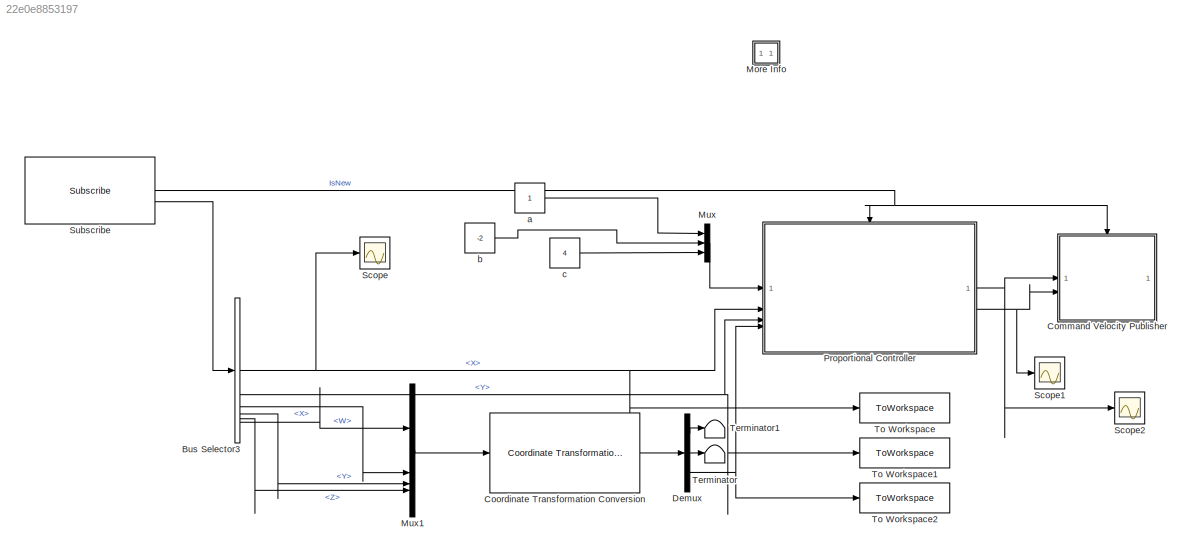
MODEL slx_22e0e8853197
KIND model
CONFIG AbsTol = auto
CONFIG EnableMultiTasking = on
CONFIG FixedStep = 0.02
CONFIG MaxStep = auto
CONFIG MinStep = auto
CONFIG RelTol = 1e-3
CONFIG SampleTimeConstraint = Unconstrained
CONFIG SolverName = FixedStepDiscrete
CONFIG StartTime = 0.0
CONFIG StopTime = Inf
WORKSPACE source: mxarray member
WORKSPACE SL_ROS_VariableLengthArrays_MaxSizes: object (value not decoded)
BLOCK [BusSelector] Bus Selector3
  OutputSignals = Pose.Pose.Position.X,Pose.Pose.Position.Y,Pose.Pose.Orientation.X,Pose.Pose.Orientation.Y,Pose.Pose.Orientation.Z,Pose.Pose.Orientation.W
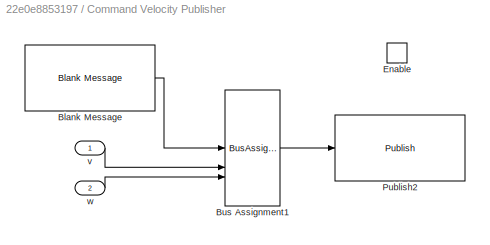
BLOCK [SubSystem] Command Velocity Publisher
BLOCK [Reference] Command Velocity Publisher/Blank Message  REF=robotlib/Blank Message
  SourceBlock = robotlib/Blank Message
  SourceType = ROS Blank Message
BLOCK [BusAssignment] Command Velocity Publisher/Bus Assignment1
  AssignedSignals = Linear.X,Angular.Z
  DialogController = Simulink.DDGSource_BusAssignment
BLOCK [EnablePort] Command Velocity Publisher/Enable
BLOCK [Reference] Command Velocity Publisher/Publish2  REF=robotlib/Publish
  AttributesFormatString = %<messageType>
  SourceBlock = robotlib/Publish
  SourceType = ROS Publish
BLOCK [Inport] Command Velocity Publisher/v
BLOCK [Inport] Command Velocity Publisher/w
  Port = 2
BLOCK [Reference] Coordinate Transformation Conversion  REF=robotcorelib/Coordinate Transformation Conversion
  LibrarySourceBlock = roslib/Utilities/Coordinate Transformation Conversion
  SourceBlock = robotcorelib/Coordinate Transformation Conversion
  SourceType = robotics.slcore.internal.block.CoordinateTransformationConversion
BLOCK [Demux] Demux
  Outputs = 3
BLOCK [SubSystem] More Info
  OpenFcn = showdemo(bdroot(gcb))
BLOCK [Mux] Mux
  DisplayOption = bar
  Inputs = 3
BLOCK [Mux] Mux1
  DisplayOption = bar
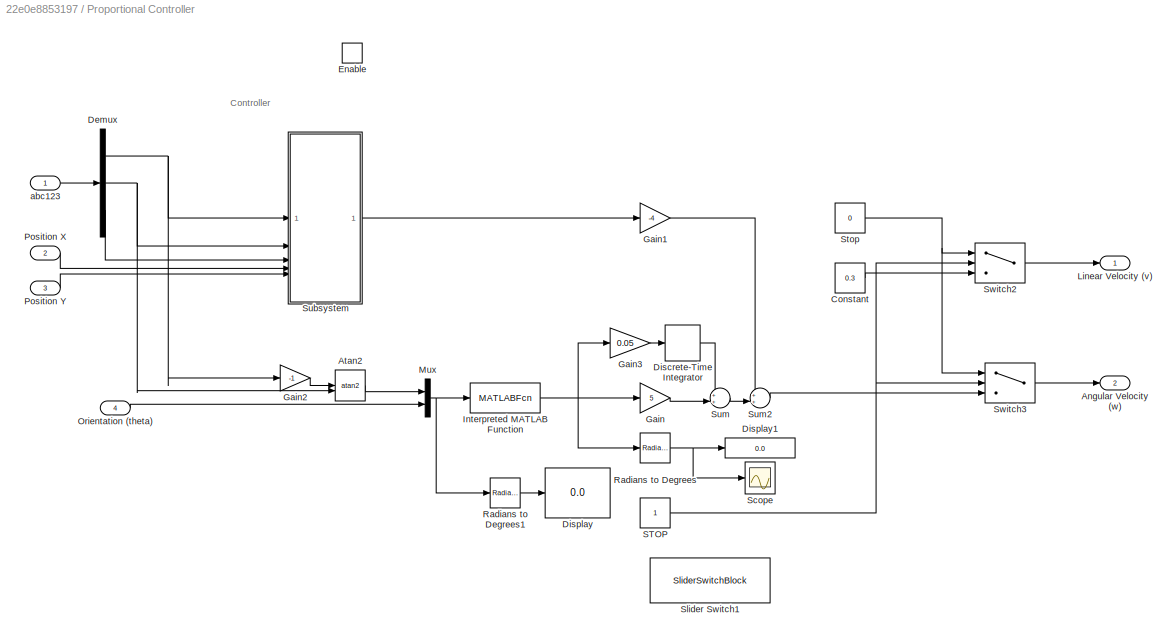
BLOCK [SubSystem] Proportional Controller
BLOCK [Outport] Proportional Controller/Angular Velocity (w)
  Port = 2
  VectorParamsAs1DForOutWhenUnconnected = off
BLOCK [Trigonometry] Proportional Controller/Atan2
  Operator = atan2
BLOCK [Constant] Proportional Controller/Constant
  Value = 0.3
BLOCK [Demux] Proportional Controller/Demux
  Outputs = 3
BLOCK [DiscreteIntegrator] Proportional Controller/Discrete-Time Integrator
  ICPrevOutput = DiscIntNeverNeededParam
  ICPrevScaledInput = DiscIntNeverNeededParam
  InitialConditionSetting = Auto
  SampleTime = -1
BLOCK [Display] Proportional Controller/Display
  Decimation = 1
BLOCK [Display] Proportional Controller/Display1
  Decimation = 1
BLOCK [EnablePort] Proportional Controller/Enable
BLOCK [Gain] Proportional Controller/Gain
  Gain = 5
BLOCK [Gain] Proportional Controller/Gain1
  Gain = -4
BLOCK [Gain] Proportional Controller/Gain2
  Gain = -1
BLOCK [Gain] Proportional Controller/Gain3
  Gain = 0.05
BLOCK [MATLABFcn] Proportional Controller/Interpreted MATLAB Function
  MATLABFcn = angdiff(u(2), u(1))
BLOCK [Outport] Proportional Controller/Linear Velocity (v)
  VectorParamsAs1DForOutWhenUnconnected = off
BLOCK [Mux] Proportional Controller/Mux
  DisplayOption = bar
  Inputs = 2
BLOCK [Inport] Proportional Controller/Orientation (theta)
  Port = 4
BLOCK [Inport] Proportional Controller/Position X
  Port = 2
BLOCK [Inport] Proportional Controller/Position Y
  Port = 3
BLOCK [Reference] Proportional Controller/Radians to Degrees  REF=simulink_extras/Transformations/Radians
to Degrees
  SourceBlock = simulink_extras/Transformations/Radians\nto Degrees
  SourceType = RadiansToDegrees
BLOCK [Reference] Proportional Controller/Radians to Degrees1  REF=simulink_extras/Transformations/Radians
to Degrees
  SourceBlock = simulink_extras/Transformations/Radians\nto Degrees
  SourceType = RadiansToDegrees
BLOCK [Constant] Proportional Controller/STOP 
BLOCK [Scope] Proportional Controller/Scope
  Floating = off
  NumInputPorts = 1
  ScopeSpecificationString = Simulink.scopes.TimeScopeBlockCfg('CurrentConfiguration', extmgr.ConfigurationSet(extmgr.Configuration('Core','General UI',true),extmgr.Configuration('Core','Source UI',true),extmgr.Configuration('Sources','WiredSimulink',true,'DataLoggingVariableName','ScopeData3'),extmgr.Configuration('Visuals','Time Domain',true,'SerializedDisplays',{struct('MinYLimReal','-224.9364','MaxYLimReal','224.9626','YL...<+1496ch>
BLOCK [SliderSwitchBlock] Proportional Controller/Slider Switch1
BLOCK [Constant] Proportional Controller/Stop
  Value = 0
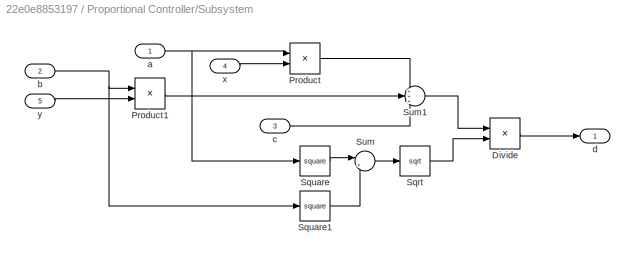
BLOCK [SubSystem] Proportional Controller/Subsystem
BLOCK [Product] Proportional Controller/Subsystem/Divide
  Inputs = */
BLOCK [Product] Proportional Controller/Subsystem/Product
BLOCK [Product] Proportional Controller/Subsystem/Product1
BLOCK [Sqrt] Proportional Controller/Subsystem/Sqrt
BLOCK [Math] Proportional Controller/Subsystem/Square
  Operator = square
BLOCK [Math] Proportional Controller/Subsystem/Square1
  Operator = square
BLOCK [Sum] Proportional Controller/Subsystem/Sum
  Inputs = |++
BLOCK [Sum] Proportional Controller/Subsystem/Sum1
  Inputs = +++
BLOCK [Inport] Proportional Controller/Subsystem/a
BLOCK [Inport] Proportional Controller/Subsystem/b
  Port = 2
BLOCK [Inport] Proportional Controller/Subsystem/c
  Port = 3
BLOCK [Outport] Proportional Controller/Subsystem/d
BLOCK [Inport] Proportional Controller/Subsystem/x
  Port = 4
BLOCK [Inport] Proportional Controller/Subsystem/y
  Port = 5
BLOCK [Sum] Proportional Controller/Sum
  Inputs = ++|
BLOCK [Sum] Proportional Controller/Sum2
  Inputs = ++|
BLOCK [Switch] Proportional Controller/Switch2
  Criteria = u2 ~= 0
  InputSameDT = off
  SaturateOnIntegerOverflow = off
BLOCK [Switch] Proportional Controller/Switch3
  Criteria = u2 ~= 0
  InputSameDT = off
  SaturateOnIntegerOverflow = off
BLOCK [Inport] Proportional Controller/abc123
BLOCK [Scope] Scope
  Floating = off
  NumInputPorts = 1
  ScopeSpecificationString = Simulink.scopes.TimeScopeBlockCfg('CurrentConfiguration', extmgr.ConfigurationSet(extmgr.Configuration('Core','General UI',true),extmgr.Configuration('Core','Source UI',true),extmgr.Configuration('Sources','WiredSimulink',true,'DataLoggingVariableName','ScopeData1'),extmgr.Configuration('Visuals','Time Domain',true,'SerializedDisplays',{struct('MinYLimReal','-0.05873','MaxYLimReal','0.52853','YLab...<+1396ch>
BLOCK [Scope] Scope1
  Floating = off
  NumInputPorts = 1
  ScopeSpecificationString = Simulink.scopes.TimeScopeBlockCfg('CurrentConfiguration', extmgr.ConfigurationSet(extmgr.Configuration('Core','General UI',true),extmgr.Configuration('Core','Source UI',true),extmgr.Configuration('Sources','WiredSimulink',true,'DataLoggingVariableName','ScopeData2'),extmgr.Configuration('Visuals','Time Domain',true,'SerializedDisplays',{struct('MinYLimReal','-0.34679','MaxYLimReal','2.56799','YLab...<+1450ch>
BLOCK [Scope] Scope2
  Floating = off
  NumInputPorts = 1
  ScopeSpecificationString = Simulink.scopes.TimeScopeBlockCfg('CurrentConfiguration', extmgr.ConfigurationSet(extmgr.Configuration('Core','General UI',true),extmgr.Configuration('Core','Source UI',true),extmgr.Configuration('Sources','WiredSimulink',true),extmgr.Configuration('Visuals','Time Domain',true,'SerializedDisplays',{struct('MinYLimReal','-0.0274','MaxYLimReal','0.2466','YLabelReal','','MinYLimMag','0.00000','MaxYLi...<+1339ch>
BLOCK [Reference] Subscribe  REF=robotlib/Subscribe
  SourceBlock = robotlib/Subscribe
  SourceType = ROS Subscribe
BLOCK [Terminator] Terminator
BLOCK [Terminator] Terminator1
BLOCK [ToWorkspace] To Workspace
  FixptAsFi = on
  MaxDataPoints = inf
  SampleTime = -1
  SaveFormat = Timeseries
  VariableName = x_exp
BLOCK [ToWorkspace] To Workspace1
  FixptAsFi = on
  MaxDataPoints = inf
  SampleTime = -1
  SaveFormat = Timeseries
  VariableName = y_exp
BLOCK [ToWorkspace] To Workspace2
  FixptAsFi = on
  MaxDataPoints = inf
  SampleTime = -1
  SaveFormat = Timeseries
  VariableName = theta_exp
BLOCK [Constant] a
BLOCK [Constant] b
  Value = -2
BLOCK [Constant] c
  Value = 4
ANNOTATION Proportional Controller: Controller
NET Bus Selector3:1 -> Proportional Controller:2, Scope:1, To Workspace:1
NET Bus Selector3:2 -> Proportional Controller:3, To Workspace1:1
LINE Bus Selector3:3 -> Mux1:2
LINE Bus Selector3:4 -> Mux1:3
LINE Bus Selector3:5 -> Mux1:4
LINE Bus Selector3:6 -> Mux1:1
LINE Command Velocity Publisher/Blank Message:1 -> Command Velocity Publisher/Bus Assignment1:1
LINE Command Velocity Publisher/Bus Assignment1:1 -> Command Velocity Publisher/Publish2:1
LINE Command Velocity Publisher/v:1 -> Command Velocity Publisher/Bus Assignment1:2
LINE Command Velocity Publisher/w:1 -> Command Velocity Publisher/Bus Assignment1:3
LINE Coordinate Transformation Conversion:1 -> Demux:1
LINE Demux:1 -> Terminator1:1
LINE Demux:2 -> Terminator:1
NET Demux:3 -> Proportional Controller:4, To Workspace2:1
LINE Mux1:1 -> Coordinate Transformation Conversion:1
LINE Mux:1 -> Proportional Controller:1
LINE Proportional Controller/Atan2:1 -> Proportional Controller/Mux:1
LINE Proportional Controller/Constant:1 -> Proportional Controller/Switch2:3
NET Proportional Controller/Demux:1 -> Proportional Controller/Gain2:1, Proportional Controller/Subsystem:1
NET Proportional Controller/Demux:2 -> Proportional Controller/Atan2:2, Proportional Controller/Subsystem:2
LINE Proportional Controller/Demux:3 -> Proportional Controller/Subsystem:3
LINE Proportional Controller/Discrete-Time Integrator:1 -> Proportional Controller/Sum:1
LINE Proportional Controller/Gain1:1 -> Proportional Controller/Sum2:1
LINE Proportional Controller/Gain2:1 -> Proportional Controller/Atan2:1
LINE Proportional Controller/Gain3:1 -> Proportional Controller/Discrete-Time Integrator:1
LINE Proportional Controller/Gain:1 -> Proportional Controller/Sum:2
NET Proportional Controller/Interpreted MATLAB Function:1 -> Proportional Controller/Gain3:1, Proportional Controller/Gain:1, Proportional Controller/Radians to Degrees:1
NET Proportional Controller/Mux:1 -> Proportional Controller/Interpreted MATLAB Function:1, Proportional Controller/Radians to Degrees1:1
LINE Proportional Controller/Orientation (theta):1 -> Proportional Controller/Mux:2
LINE Proportional Controller/Position X:1 -> Proportional Controller/Subsystem:4
LINE Proportional Controller/Position Y:1 -> Proportional Controller/Subsystem:5
LINE Proportional Controller/Radians to Degrees1:1 -> Proportional Controller/Display:1
NET Proportional Controller/Radians to Degrees:1 -> Proportional Controller/Display1:1, Proportional Controller/Scope:1
NET Proportional Controller/STOP :1 -> Proportional Controller/Switch2:2, Proportional Controller/Switch3:2
NET Proportional Controller/Stop:1 -> Proportional Controller/Switch2:1, Proportional Controller/Switch3:1
LINE Proportional Controller/Subsystem/Divide:1 -> Proportional Controller/Subsystem/d:1
LINE Proportional Controller/Subsystem/Product1:1 -> Proportional Controller/Subsystem/Sum1:2
LINE Proportional Controller/Subsystem/Product:1 -> Proportional Controller/Subsystem/Sum1:1
LINE Proportional Controller/Subsystem/Sqrt:1 -> Proportional Controller/Subsystem/Divide:2
LINE Proportional Controller/Subsystem/Square1:1 -> Proportional Controller/Subsystem/Sum:2
LINE Proportional Controller/Subsystem/Square:1 -> Proportional Controller/Subsystem/Sum:1
LINE Proportional Controller/Subsystem/Sum1:1 -> Proportional Controller/Subsystem/Divide:1
LINE Proportional Controller/Subsystem/Sum:1 -> Proportional Controller/Subsystem/Sqrt:1
NET Proportional Controller/Subsystem/a:1 -> Proportional Controller/Subsystem/Product:1, Proportional Controller/Subsystem/Square:1
NET Proportional Controller/Subsystem/b:1 -> Proportional Controller/Subsystem/Product1:1, Proportional Controller/Subsystem/Square1:1
LINE Proportional Controller/Subsystem/c:1 -> Proportional Controller/Subsystem/Sum1:3
LINE Proportional Controller/Subsystem/x:1 -> Proportional Controller/Subsystem/Product:2
LINE Proportional Controller/Subsystem/y:1 -> Proportional Controller/Subsystem/Product1:2
LINE Proportional Controller/Subsystem:1 -> Proportional Controller/Gain1:1
LINE Proportional Controller/Sum2:1 -> Proportional Controller/Switch3:3
LINE Proportional Controller/Sum:1 -> Proportional Controller/Sum2:2
LINE Proportional Controller/Switch2:1 -> Proportional Controller/Linear Velocity (v):1
LINE Proportional Controller/Switch3:1 -> Proportional Controller/Angular Velocity (w):1
LINE Proportional Controller/abc123:1 -> Proportional Controller/Demux:1
NET Proportional Controller:1 -> Command Velocity Publisher:1, Scope2:1
NET Proportional Controller:2 -> Command Velocity Publisher:2, Scope1:1
NET Subscribe:1 -> Command Velocity Publisher:enable, Proportional Controller:enable
LINE Subscribe:2 -> Bus Selector3:1
LINE a:1 -> Mux:1
LINE b:1 -> Mux:2
LINE c:1 -> Mux:3
note: NET lines group one-source signal fan-out (src -> all destinations, sorted); 1:1 wires keep LINE
